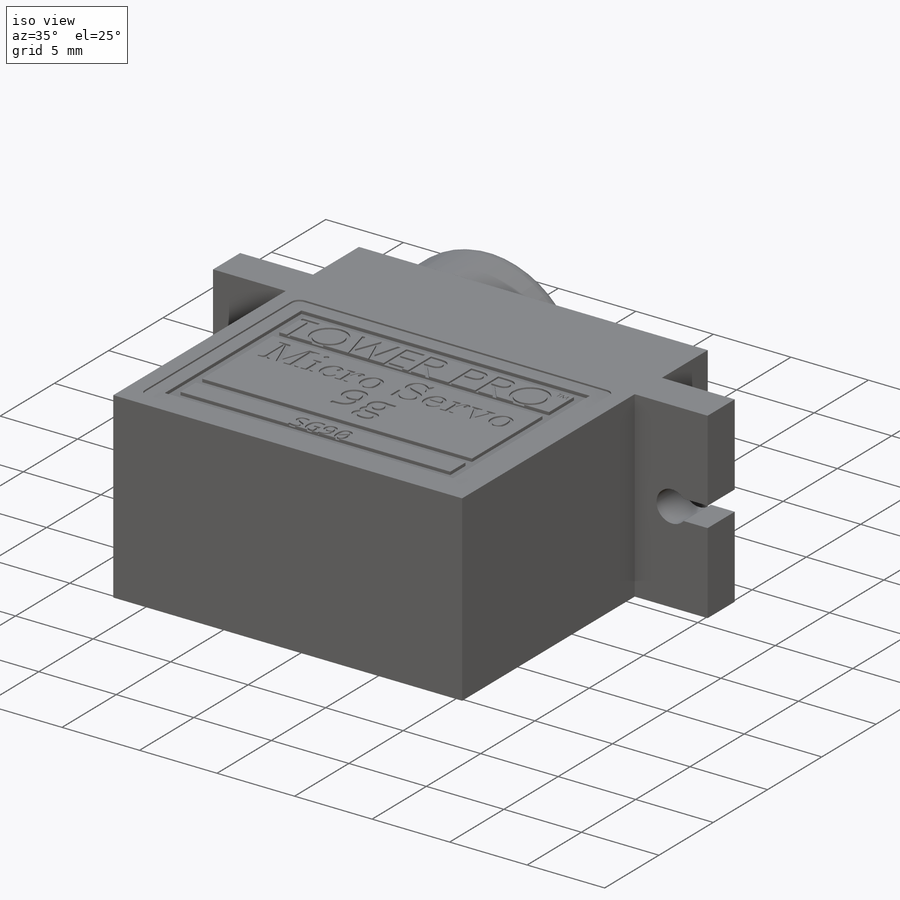
[diagram: iso view]
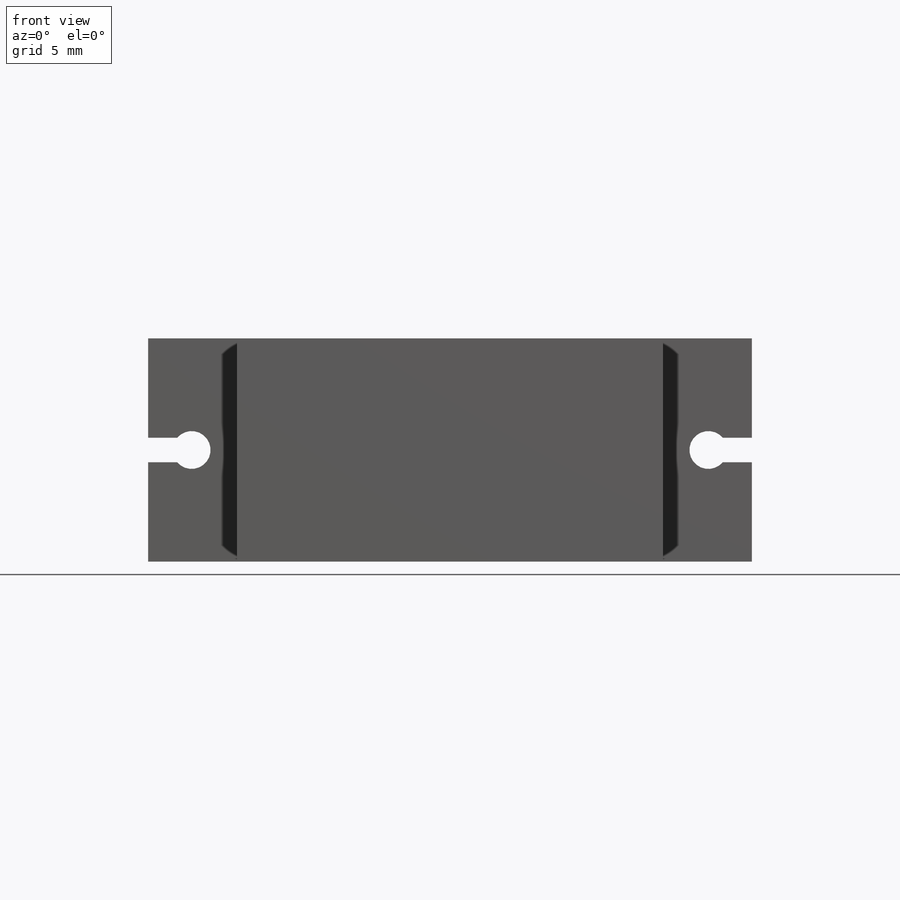
[diagram: front view]
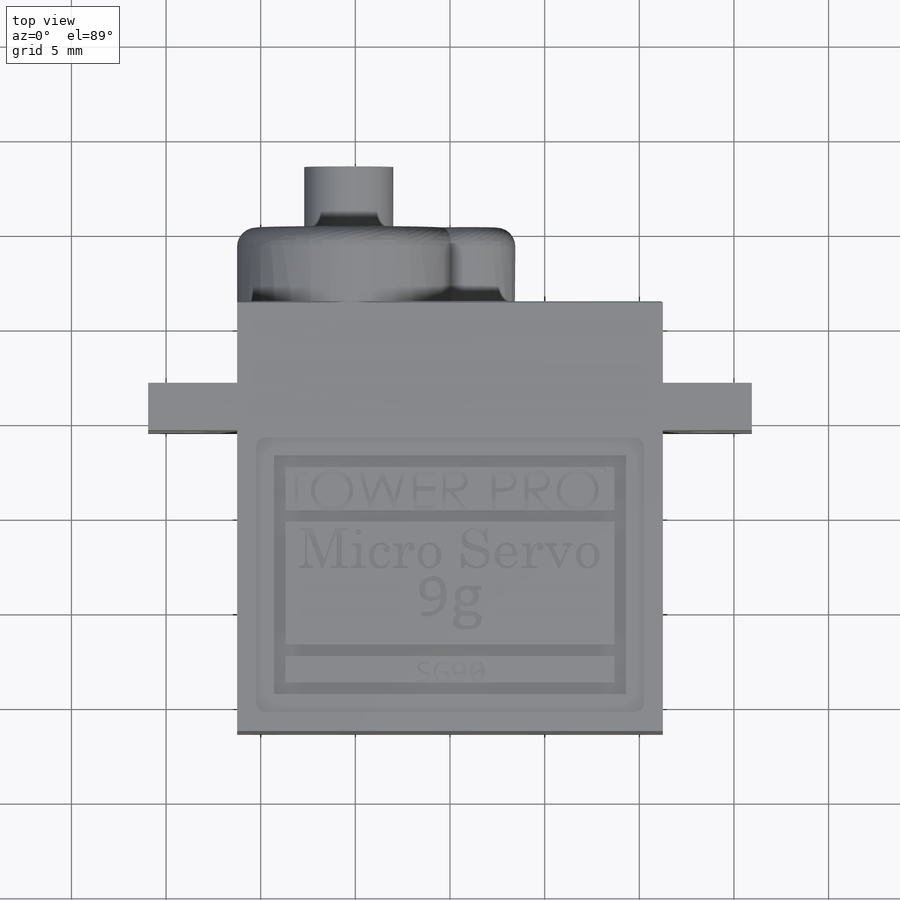
[diagram: top view]
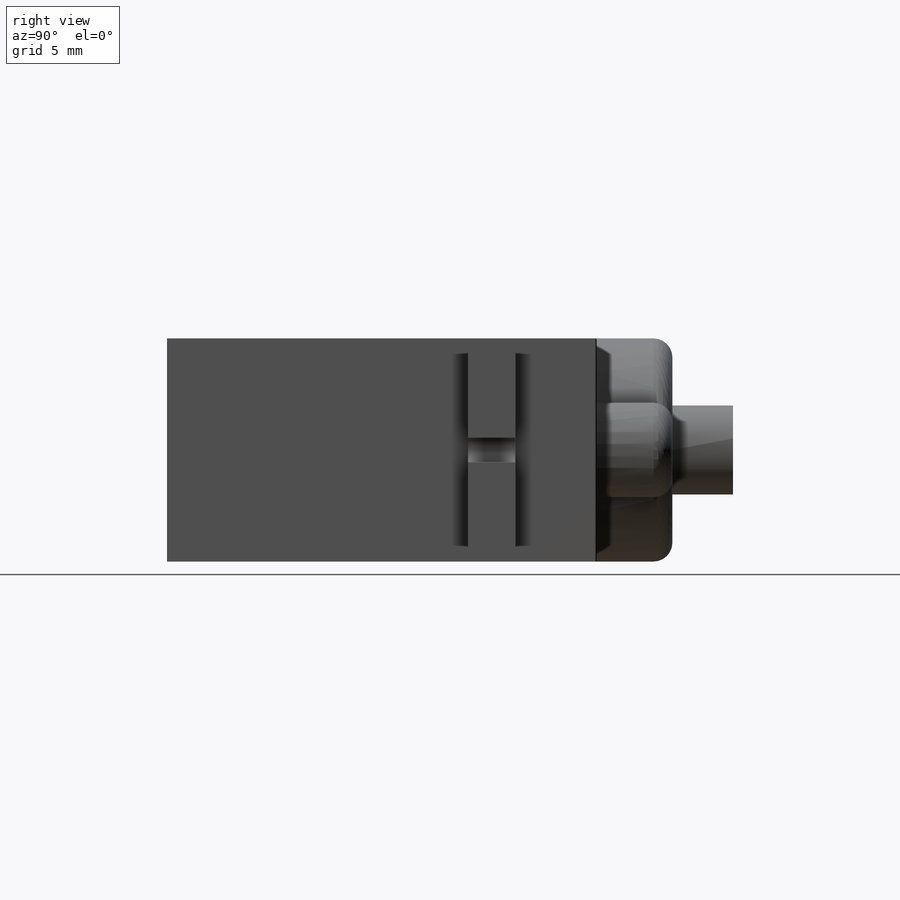
[diagram: right view]
SOLIDWORKS PART (.sldprt)
format: sldprt  version: not decoded by parser v0  size: 1,242,112 bytes
history: native  units: mm
features: sketch x11, cut_extrude x6, extrude x5, fillet x2, material x1 (+13 scaffold rows collapsed)
feature tree (38):
  scaffold x13  (default folders/planes/origin — collapsed)
  material  "Material <not specified>"
  sketch  "Sketch1"  dims[D1=22.5mm D2=22.7mm]
  extrude  "Boss-Extrude1"  Depth=11.8mm
  sketch  "Sketch2"  dims[D1=2.5mm D2=15.9mm]
  extrude  "Boss-Extrude2"  Depth=4.7mm
  sketch  "Sketch3"  dims[D1=15.9mm D2=2.5mm]
  extrude  "Boss-Extrude3"  Depth=4.7mm
  sketch  "Sketch4"  dims[D1=11.8mm D4=5.0mm D2=5.9mm D3=5.9mm D5=6.3mm]
  extrude  "Boss-Extrude5"  Depth=4mm
  sketch  "Sketch7"  dims[c1.D3=2.0mm c1.D4=2.0mm c1.D1=5.9mm c1.D2=5.9mm c1.D5=2.3mm c1.D6=2.3mm c1.D7=1.3mm c1.D8=1.3mm c1.D9=3.0mm c2.D7=0.65mm c2.D8=0.65mm c2.D10=0.65mm c2.D11=0.65mm]
  cut_extrude  "Cut-Extrude6"  [1 undecoded]
  sketch  "Sketch11"  dims[c1.D1=0.5mm c1.D2=2.0mm c1.D3=1.0mm c1.D4=17.7mm c2.D3=17.7mm c2.D2=13.5mm c3.D3=1.0mm c3.D4=1.0mm c3.D5=1.0mm]
  cut_extrude  "Cut-Extrude7"  Depth=0.1mm
  fillet  "Fillet8"  Radius=0.1mm
  sketch  "Sketch18"  dims[c1.D1=1.25mm c1.D2=1.25mm c1.D3=1.25mm c1.D4=1.25mm c1.D5=2.0mm c1.D6=18.0mm c2.D1=12.6mm c2.D2=17.4mm c2.D3=17.4mm c2.D4=17.4mm c2.D5=18.6mm c2.D6=17.4mm c2.D7=17.4mm c2.D8=17.4mm c2.D9=1.4mm c2.D10=0.95mm c2.D11=0.6mm c2.D12=0.6mm c2.D13=0.95mm c2.D14=0.95mm c2.D15=0.6mm c2.D16=0.6mm c2.D17=6.5mm c3.D6=0.3mm c3.D7=0.3mm]
  cut_extrude  "Cut-Extrude16"  Depth=0.2mm
  sketch  "Sketch19"  dims[c1.D1=~0.912852mm c1.D2=~0.48104mm c1.D3=~0.912852mm c2.D3=90.0deg c3.D3=~2.44804mm c3.D4=~1.491625mm]
  cut_extrude  "Cut-Extrude17"  Depth=0.1mm
  fillet  "Fillet9"  Radius=1mm
  sketch  "Sketch20"  dims[D1=4.7mm]
  extrude  "Boss-Extrude6"  Depth=3.2mm
  sketch  "Sketch21"  dims[D1=2.0mm]
  cut_extrude  "Cut-Extrude18"  Depth=0.22496mm
  sketch  "Sketch23"  dims[D1=0.18mm D2=0.18mm D3=0.18mm D4=0.18mm D5=0.64mm D6=0.64mm D7=0.64mm D8=0.64mm D9=0.64mm D10=0.64mm D11=0.64mm D12=0.36mm]
  cut_extrude  "Cut-Extrude19"  Depth=1mm
decode coverage: 23 of 24 modeling features carry decoded parameters
note: ~ marks probable driven/reference dimensions
note: 1 parameter value undecoded
note: suppression state not decoded; provenance and decode notes live in map.json
